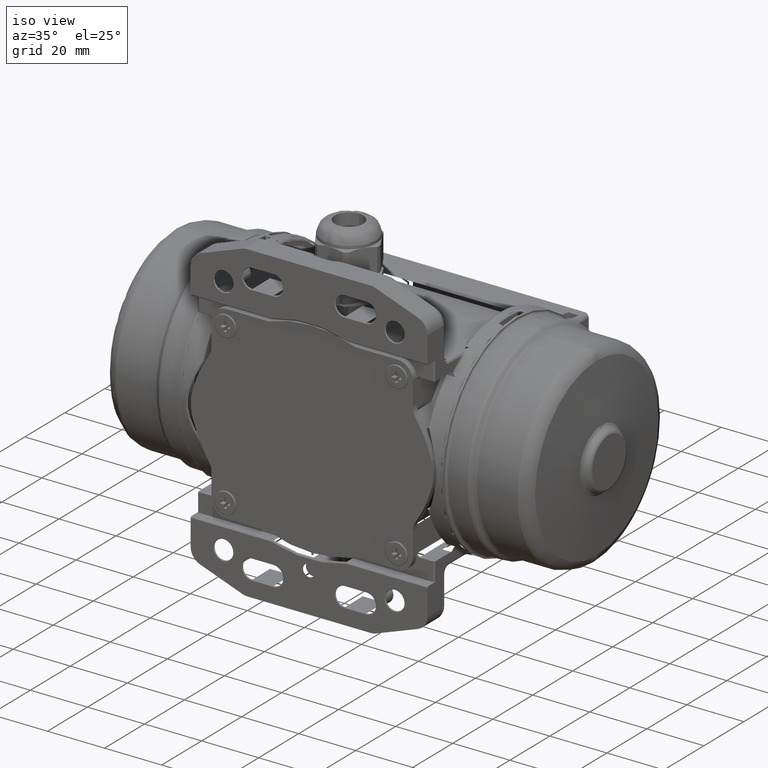
[diagram: clean part render]
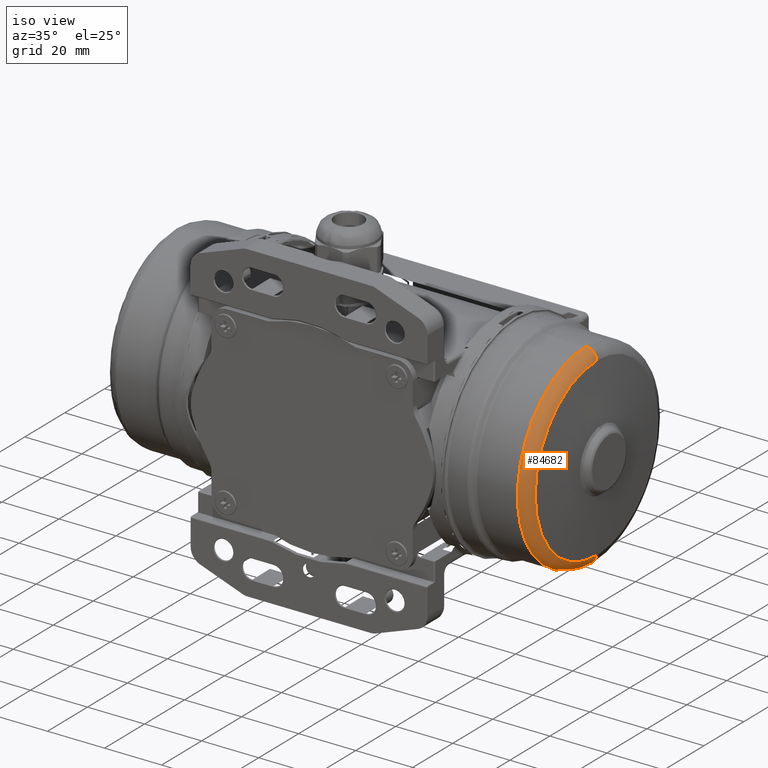
[diagram: same view with one face highlighted and labeled with its STEP entity id]
A machine part, iso view. The second image highlights one B-rep face of the part: STEP entity #84682.
In plain terms, the highlighted face is a freeform B-spline surface patch.
Its self-contained STEP definition (entity closure, byte-faithful):
#75 = CARTESIAN_POINT ( 'NONE',  ( 71.84616858138170400, -23.96142504933795100, -24.27496744435845200 ) ) ;
#491 = CARTESIAN_POINT ( 'NONE',  ( 71.84616858138170400, 32.05872122068554800, -13.16247379832032000 ) ) ;
#900 = CARTESIAN_POINT ( 'NONE',  ( 73.06222453156009100, -6.166481506836210400, 32.77824148063749700 ) ) ;
#977 = EDGE_CURVE ( 'NONE', #42993, #122891, #7827, .T. ) ;
#1321 = CARTESIAN_POINT ( 'NONE',  ( 73.06222453156009100, -2.922361509998724600, 33.25772776959745900 ) ) ;
#1778 = CARTESIAN_POINT ( 'NONE',  ( 70.43574938282006300, -30.49102585178326300, 15.20282566184694100 ) ) ;
#2433 = CARTESIAN_POINT ( 'NONE',  ( 70.43574938282006300, -8.573300669312010000, -33.20164898374916600 ) ) ;
#2957 = CARTESIAN_POINT ( 'NONE',  ( 74.22128918868342900, -30.29536546909900000, 4.040129364809244400 ) ) ;
#3016 = CARTESIAN_POINT ( 'NONE',  ( 70.43574938282010600, 0.3360905650000265400, 34.29700716684155300 ) ) ;
#3183 = CARTESIAN_POINT ( 'NONE',  ( 71.84616858138170400, 0.3181463391479345000, -34.12684089303675700 ) ) ;
#3657 = CARTESIAN_POINT ( 'NONE',  ( 70.43574938282007700, -4.170881941359296800, -34.07960095651142800 ) ) ;
#3703 = CARTESIAN_POINT ( 'NONE',  ( 73.92288612965070600, -17.69444738944589800, -26.95690571574654700 ) ) ;
#3880 = B_SPLINE_SURFACE_WITH_KNOTS ( 'NONE', 3, 3, ( 
 ( #82626, #25109, #92787, #63150, #15010, #44517, #24691, #92366, #34404, #102928, #63569, #111842, #44926, #121578, #112677, #5649, #112257, #15838, #54678, #28000, #17043, #27574, #104167, #94826, #105024, #36876, #124491, #36447, #105429, #113883, #66903, #114307, #103743, #84679, #17449, #85090, #76636, #7298, #7707, #47449, #75794, #115154, #66477 ),
 ( #96087, #55910, #85956, #18296, #18728, #86375, #8565, #123643, #37725, #17891, #95665, #28433, #123230, #37292, #57178, #124073, #46586, #65202, #124909, #45761, #94407, #74954, #85524, #104582, #95243, #26744, #8984, #46166, #65626, #47007, #56319, #113471, #55489, #66045, #8146, #75380, #27160, #114743, #56750, #76228, #20411, #68152, #77482 ),
 ( #19570, #29275, #11082, #106681, #49552, #115993, #87199, #96933, #39386, #58441, #9832, #58035, #107105, #30103, #96511, #28852, #38979, #75, #29685, #86791, #48713, #88042, #67743, #116423, #10647, #19147, #97361, #491, #68990, #49139, #115586, #10231, #116833, #87627, #38152, #59258, #78734, #38565, #117260, #77904, #58859, #105851, #19982 ),
 ( #47866, #97771, #1321, #900, #68577, #57604, #78316, #125341, #67328, #39802, #9403, #77061, #107536, #106263, #48304, #100530, #33701, #70370, #79291, #50371, #109589, #75627, #67898, #99168, #18501, #106451, #44084, #74128, #91286, #23603, #62912, #52347, #14341, #63341, #33335, #120488, #43858, #110334, #4982, #91697, #44281, #72652, #13489 ),
 ( #53611, #72235, #24874, #54031, #81108, #82389, #61642, #71805, #101426, #111598, #23190, #4113, #120070, #24447, #52756, #34179, #14770, #92125, #3703, #101844, #101005, #121326, #62064, #90853, #13903, #73073, #62489, #4543, #5408, #15185, #82812, #71374, #120921, #32913, #100580, #42603, #81528, #43022, #92545, #110738, #81946, #24035, #33760 ),
 ( #43440, #34598, #111169, #53173, #102271, #112017, #45941, #75138, #94184, #84046, #26114, #74307, #84851, #7064, #6650, #46351, #93366, #36220, #112846, #44695, #34998, #64160, #113638, #64976, #123409, #122576, #7476, #26922, #112436, #5841, #73897, #94587, #17223, #16406, #36628, #25709, #93768, #35816, #104348, #74731, #103517, #114071, #35420 ),
 ( #54446, #102700, #6229, #55673, #16801, #65390, #64566, #121761, #63740, #122170, #73481, #16004, #15595, #83230, #45522, #25293, #103099, #92965, #83645, #103929, #45117, #84449, #54859, #113252, #55258, #122992, #26520, #46770, #56080, #125521, #57365, #9165, #114493, #65805, #124255, #56515, #37487, #57790, #29021, #95016, #37902, #86546, #37058 ) ),
 .UNSPECIFIED., .F., .T., .F.,
 ( 4, 1, 1, 1, 4 ),
 ( 4, 1, 1, 1, 1, 1, 1, 1, 1, 1, 1, 1, 1, 1, 1, 1, 1, 1, 1, 1, 1, 1, 1, 1, 1, 1, 1, 1, 1, 1, 1, 1, 1, 1, 1, 1, 1, 1, 1, 1, 4 ),
 ( 0.0000000000000000000, 1.401289650940726000, 2.802579301881445300, 4.203868952822170400, 5.605158603762900400 ),
 ( 0.0000000000000000000, 3.231698556428625100, 6.463397112857250300, 9.695095669285880300, 12.92679422571450100, 19.38240589368595200, 25.83801756165739900, 29.06971611808605300, 32.30141467451465300, 35.53311323094325000, 38.76481178737190400, 45.22042345534340100, 51.67603512331479700, 58.13164679128630000, 64.58725845925769700, 71.04287012722920700, 77.49848179520060400, 83.95409346317210000, 90.40970513114349700, 96.86531679911499300, 103.3209284670864000, 109.7765401350580000, 116.2321518030292000, 122.6877634710007900, 129.1433751389721700, 135.5989868069436000, 142.0545984749150000, 148.5102101428865900, 154.9658218108579900, 161.4214334788295000, 167.8770451468010100, 171.1087437032294900, 174.3404422596580000, 177.5721408160870000, 180.8038393725154800, 187.2594510404870200, 193.7150627084585000, 196.9467612648869900, 200.1784598213155000, 203.4101583777440100, 206.6418569341730100 ),
 .UNSPECIFIED. ) ;
#4113 = CARTESIAN_POINT ( 'NONE',  ( 73.92288612965060700, -29.92410021405890000, 11.41215137080319900 ) ) ;
#4543 = CARTESIAN_POINT ( 'NONE',  ( 73.92288612965070600, 30.28966746623805100, -12.42861822794644100 ) ) ;
#4982 = CARTESIAN_POINT ( 'NONE',  ( 73.06222453156019000, 10.05437410676571900, 31.97268144991780000 ) ) ;
#5408 = CARTESIAN_POINT ( 'NONE',  ( 73.92288612965070600, 32.13827405574305400, -6.346271111378470700 ) ) ;
#5649 = CARTESIAN_POINT ( 'NONE',  ( 70.43574938282010600, -31.56418599270870100, -13.19686040768102100 ) ) ;
#5841 = CARTESIAN_POINT ( 'NONE',  ( 74.18057904128930600, 31.83424199148150200, -0.01937788834485120300 ) ) ;
#6124 = CARTESIAN_POINT ( 'NONE',  ( 70.43574938282006300, -33.74170139248900600, 4.495019829275311600 ) ) ;
#6229 = CARTESIAN_POINT ( 'NONE',  ( 74.22128918806660600, -2.674790984704664700, 30.73064623487700000 ) ) ;
#6609 = CARTESIAN_POINT ( 'NONE',  ( 71.84616858138170400, 0.3540347908520845600, 34.12085523303675000 ) ) ;
#6650 = CARTESIAN_POINT ( 'NONE',  ( 74.18057904128930600, -30.56018723386494800, -6.131799084268929600 ) ) ;
#7064 = CARTESIAN_POINT ( 'NONE',  ( 74.18057904128930600, -31.16206067382514900, 0.01374908727597824000 ) ) ;
#7298 = CARTESIAN_POINT ( 'NONE',  ( 70.43574938282010600, 14.55443122782166100, 31.35243117962375300 ) ) ;
#7476 = CARTESIAN_POINT ( 'NONE',  ( 74.18057904128930600, 26.51672796140579900, -17.51625843180164900 ) ) ;
#7707 = CARTESIAN_POINT ( 'NONE',  ( 70.43574938282010600, 10.32632557389709900, 32.86747233511550100 ) ) ;
#7827 = B_SPLINE_CURVE_WITH_KNOTS ( 'NONE', 3,
 ( #89278, #108352, #31751, #107929, #60079, #70232, #60887, #79962, #40198, #69401, #99409, #20792, #41441, #11478, #51194, #2957, #70626, #79133, #22444, #21208, #90105, #59230, #11054, #32163, #88440, #88850, #99817, #30919, #100650, #72306, #14409, #71446, #62555, #82013 ),
 .UNSPECIFIED., .F., .F.,
 ( 4, 2, 2, 2, 2, 2, 2, 2, 2, 2, 2, 2, 2, 2, 2, 2, 4 ),
 ( 0.0000000000000000000, 0.06250000000000001400, 0.1250000000000000300, 0.1875000000000000600, 0.2500000000000000600, 0.3125000000000000600, 0.3750000000000000000, 0.4375000000000000000, 0.4999999999999999400, 0.5624999999999998900, 0.6249999999999998900, 0.6874999999999998900, 0.7499999999999998900, 0.8125000000000000000, 0.8750000000000000000, 0.9375000000000000000, 1.000000000000000000 ),
 .UNSPECIFIED. ) ;
#8146 = CARTESIAN_POINT ( 'NONE',  ( 70.90284593313370500, 26.90427327882214900, 21.77780491656984900 ) ) ;
#8565 = CARTESIAN_POINT ( 'NONE',  ( 70.90284593313370500, -18.82800489602329800, 28.71076998319835000 ) ) ;
#8589 = VERTEX_POINT ( 'NONE', #90513 ) ;
#8984 = CARTESIAN_POINT ( 'NONE',  ( 70.90284593313370500, 29.02925267098275000, -19.19698575343484800 ) ) ;
#9165 = CARTESIAN_POINT ( 'NONE',  ( 74.22128918806660600, 29.30261889644240000, 10.88935325234363900 ) ) ;
#9403 = CARTESIAN_POINT ( 'NONE',  ( 73.06222453156009100, -29.12939771066750100, 15.76635564445615100 ) ) ;
#9832 = CARTESIAN_POINT ( 'NONE',  ( 71.84616858138170400, -29.79839074077254700, 16.12438752636534600 ) ) ;
#10231 = CARTESIAN_POINT ( 'NONE',  ( 71.84616858138170400, 32.39614042158530800, 12.05261681915707900 ) ) ;
#10647 = CARTESIAN_POINT ( 'NONE',  ( 71.84616858138170400, 19.40147687112200000, -28.56886684724454600 ) ) ;
#11054 = CARTESIAN_POINT ( 'NONE',  ( 74.22128918868344300, -26.42558862853541200, -15.44467222679467800 ) ) ;
#11082 = CARTESIAN_POINT ( 'NONE',  ( 71.84616858138170400, -2.996342355206894800, 34.01288886006480500 ) ) ;
#11478 = CARTESIAN_POINT ( 'NONE',  ( 74.22128918868341400, -28.91834333564500900, 9.937381056524140300 ) ) ;
#12093 = CARTESIAN_POINT ( 'NONE',  ( 70.43574938282007700, -32.21556172661424000, -11.04463925011096700 ) ) ;
#12112 = AXIS2_PLACEMENT_3D ( 'NONE', #64586, #112037, #103538 ) ;
#12206 = CARTESIAN_POINT ( 'NONE',  ( 70.43574938282006300, -16.86640636320318300, -29.76206072561903300 ) ) ;
#12800 = CARTESIAN_POINT ( 'NONE',  ( 70.43574938282006300, -14.86162209201006900, 30.82812055527784500 ) ) ;
#13489 = CARTESIAN_POINT ( 'NONE',  ( 73.06222453156009100, 0.3536364245452659500, 33.36329726205675400 ) ) ;
#13903 = CARTESIAN_POINT ( 'NONE',  ( 73.92288612965070600, 18.33827080883435200, -26.97585373216659800 ) ) ;
#14341 = CARTESIAN_POINT ( 'NONE',  ( 73.06222453156009100, 29.81814734919390000, 15.73535773179324900 ) ) ;
#14409 = CARTESIAN_POINT ( 'NONE',  ( 74.22128918868344300, -7.672281169438079500, -29.84422132371574300 ) ) ;
#14770 = CARTESIAN_POINT ( 'NONE',  ( 73.92288612965060700, -26.63677203919919700, -18.00517646669470300 ) ) ;
#15010 = CARTESIAN_POINT ( 'NONE',  ( 70.43574938282010600, -9.619568674178021100, 32.87796100071234700 ) ) ;
#15185 = CARTESIAN_POINT ( 'NONE',  ( 73.92288612965070600, 32.76457846829475100, -0.01986184110913090000 ) ) ;
#15595 = CARTESIAN_POINT ( 'NONE',  ( 74.22128918806660600, -30.09478915111484900, 6.065994405119609700 ) ) ;
#15838 = CARTESIAN_POINT ( 'NONE',  ( 70.43574938282010600, -24.08684874723625000, -24.40025929969650100 ) ) ;
#15895 = CARTESIAN_POINT ( 'NONE',  ( 70.43574938282006300, -32.86490696882139400, 8.897669243131852900 ) ) ;
#16004 = CARTESIAN_POINT ( 'NONE',  ( 74.22128918806660600, -28.61896614143380200, 10.91981165790532100 ) ) ;
#16406 = CARTESIAN_POINT ( 'NONE',  ( 74.18057904128940500, 26.40920854585720100, 17.39868693959584800 ) ) ;
#16501 = EDGE_CURVE ( 'NONE', #23816, #96448, #113125, .T. ) ;
#16801 = CARTESIAN_POINT ( 'NONE',  ( 74.22128918806660600, -8.612738594046430100, 29.55266303853415300 ) ) ;
#17043 = CARTESIAN_POINT ( 'NONE',  ( 70.43574938282010600, -6.416446212573680100, -33.85723777617884900 ) ) ;
#17223 = CARTESIAN_POINT ( 'NONE',  ( 74.18057904128930600, 27.98931133157989800, 14.75907366260732100 ) ) ;
#17449 = CARTESIAN_POINT ( 'NONE',  ( 70.43574938282010600, 26.90427327882214900, 21.77780491656984900 ) ) ;
#17891 = CARTESIAN_POINT ( 'NONE',  ( 70.90284593313370500, -28.21915988760715200, 19.09874794939615200 ) ) ;
#18296 = CARTESIAN_POINT ( 'NONE',  ( 70.90284593313370500, -6.348446151874960600, 33.69557474497809600 ) ) ;
#18501 = CARTESIAN_POINT ( 'NONE',  ( 73.06222453156009100, 18.97822052150589700, -27.93469729169510200 ) ) ;
#18728 = CARTESIAN_POINT ( 'NONE',  ( 70.90284593313370500, -9.619568674178021100, 32.87796100071234700 ) ) ;
#18957 = FACE_OUTER_BOUND ( 'NONE', #22642, .T. ) ;
#19147 = CARTESIAN_POINT ( 'NONE',  ( 71.84616858138170400, 24.60806562797540000, -24.30050799619255000 ) ) ;
#19314 = CARTESIAN_POINT ( 'NONE',  ( 74.18057904128930600, 0.3196331132321079700, -31.29949947576660200 ) ) ;
#19570 = CARTESIAN_POINT ( 'NONE',  ( 71.84616858138170400, 0.3540347908520845600, 34.12085523303675000 ) ) ;
#19982 = CARTESIAN_POINT ( 'NONE',  ( 71.84616858138170400, 0.3540347908520845600, 34.12085523303675000 ) ) ;
#20411 = CARTESIAN_POINT ( 'NONE',  ( 70.90284593313370500, 3.721683202961954900, 34.18493697360725000 ) ) ;
#20792 = CARTESIAN_POINT ( 'NONE',  ( 74.22128918868342900, -26.41746483175810700, 15.45275721597623400 ) ) ;
#20855 = CARTESIAN_POINT ( 'NONE',  ( 70.43574938282006300, -22.32713534483728100, 25.84088872716132100 ) ) ;
#21208 = CARTESIAN_POINT ( 'NONE',  ( 74.22128918868344300, -29.51144551811752200, -7.987823799913943600 ) ) ;
#21271 = CARTESIAN_POINT ( 'NONE',  ( 70.43574938282006300, -8.555841731639404200, 33.20034378867257600 ) ) ;
#21810 = ORIENTED_EDGE ( 'NONE', *, *, #977, .F. ) ;
#22444 = CARTESIAN_POINT ( 'NONE',  ( 74.22128918868345700, -30.29748733317763200, -4.030006737026213600 ) ) ;
#22642 = EDGE_LOOP ( 'NONE', ( #54140, #21810, #44932, #113217, #37549, #67258 ) ) ;
#22720 = CARTESIAN_POINT ( 'NONE',  ( 70.43574938282003500, -1.926499961122964300, -34.30180777588409300 ) ) ;
#23190 = CARTESIAN_POINT ( 'NONE',  ( 73.92288612965070600, -28.11790220024380100, 15.22502318680300000 ) ) ;
#23603 = CARTESIAN_POINT ( 'NONE',  ( 73.06222453156009100, 33.91736114433720000, -0.02046150840868379800 ) ) ;
#23816 = VERTEX_POINT ( 'NONE', #102830 ) ;
#24035 = CARTESIAN_POINT ( 'NONE',  ( 73.92288612965070600, 1.407036777381545800, 32.21734021354365000 ) ) ;
#24447 = CARTESIAN_POINT ( 'NONE',  ( 73.92288612965070600, -32.09239714509570300, 0.01424358030584192000 ) ) ;
#24691 = CARTESIAN_POINT ( 'NONE',  ( 70.43574938282010600, -18.82800489602329800, 28.71076998319835000 ) ) ;
#24874 = CARTESIAN_POINT ( 'NONE',  ( 73.92288612965070600, -2.810504899514044900, 32.11594897926499900 ) ) ;
#25109 = CARTESIAN_POINT ( 'NONE',  ( 70.43574938282010600, -0.7678865789330759900, 34.29759244525914900 ) ) ;
#25293 = CARTESIAN_POINT ( 'NONE',  ( 74.22128918806660600, -28.33806532794909900, -11.86254567961098200 ) ) ;
#25709 = CARTESIAN_POINT ( 'NONE',  ( 74.18057904128930600, 21.82751197470985000, 22.90869326854010200 ) ) ;
#26114 = CARTESIAN_POINT ( 'NONE',  ( 74.18057904128930600, -27.30158947362430100, 14.78814870742001900 ) ) ;
#26520 = CARTESIAN_POINT ( 'NONE',  ( 74.22128918806660600, 26.12747208485049900, -17.25586975409475000 ) ) ;
#26744 = CARTESIAN_POINT ( 'NONE',  ( 70.90284593313370500, 24.73335748562924900, -24.42593169177750000 ) ) ;
#26922 = CARTESIAN_POINT ( 'NONE',  ( 74.18057904128930600, 29.43033337439404900, -12.07214115169795900 ) ) ;
#27160 = CARTESIAN_POINT ( 'NONE',  ( 70.90284593313370500, 19.53037402051525400, 28.69059900443515000 ) ) ;
#27574 = CARTESIAN_POINT ( 'NONE',  ( 70.43574938282010600, 0.3179374420612189900, -34.52409249402384700 ) ) ;
#28000 = CARTESIAN_POINT ( 'NONE',  ( 70.43574938282010600, -12.89133360631240100, -31.88938328685310400 ) ) ;
#28433 = CARTESIAN_POINT ( 'NONE',  ( 70.90284593313370500, -31.87669087232584900, 12.14873310923306000 ) ) ;
#28852 = CARTESIAN_POINT ( 'NONE',  ( 71.84616858138170400, -31.40036252335905300, -13.12910346655215900 ) ) ;
#29021 = CARTESIAN_POINT ( 'NONE',  ( 74.22128918806660600, 9.315998796644759500, 29.54323510671394700 ) ) ;
#29275 = CARTESIAN_POINT ( 'NONE',  ( 71.84616858138170400, -0.7622171181848330600, 34.12144222065684600 ) ) ;
#29685 = CARTESIAN_POINT ( 'NONE',  ( 71.84616858138170400, -18.75932825386454900, -28.54879976381964800 ) ) ;
#30103 = CARTESIAN_POINT ( 'NONE',  ( 71.84616858138170400, -34.00761876032219500, 0.01526156011055744700 ) ) ;
#30919 = CARTESIAN_POINT ( 'NONE',  ( 74.22128918868344300, -15.12669320310088500, -26.75248355397556600 ) ) ;
#31096 = B_SPLINE_CURVE_WITH_KNOTS ( 'NONE', 3,
 ( #93325, #103055, #6609, #84011, #45901, #74692, #93728 ),
 .UNSPECIFIED., .F., .F.,
 ( 4, 1, 1, 1, 4 ),
 ( 0.0000000000000000000, 1.401289650940726000, 2.802579301881445300, 4.203868952822170400, 5.605158603762900400 ),
 .UNSPECIFIED. ) ;
#31398 = CARTESIAN_POINT ( 'NONE',  ( 70.43574938282006300, -20.58355775233979700, 27.27147026021911500 ) ) ;
#31751 = CARTESIAN_POINT ( 'NONE',  ( 74.22128918868342900, -3.698977625391938000, 30.62952519496794300 ) ) ;
#32163 = CARTESIAN_POINT ( 'NONE',  ( 74.22128918868342900, -24.18501024993802400, -18.80056050974901500 ) ) ;
#32913 = CARTESIAN_POINT ( 'NONE',  ( 73.92288612965070600, 27.17931001604860000, 17.91266686268009800 ) ) ;
#33335 = CARTESIAN_POINT ( 'NONE',  ( 73.06222453156009100, 26.18104141674849900, 21.18489394929065400 ) ) ;
#33701 = CARTESIAN_POINT ( 'NONE',  ( 73.06222453156009100, -27.59561565923230100, -18.64512629997720000 ) ) ;
#33760 = CARTESIAN_POINT ( 'NONE',  ( 73.92288612965070600, 0.3530341077606165000, 32.21789446703570500 ) ) ;
#34179 = CARTESIAN_POINT ( 'NONE',  ( 73.92288612965070600, -29.63053794297714900, -12.39710883612813900 ) ) ;
#34404 = CARTESIAN_POINT ( 'NONE',  ( 70.43574938282010600, -26.20917034091000300, 21.80573493273729800 ) ) ;
#34598 = CARTESIAN_POINT ( 'NONE',  ( 74.18057904128930600, -0.6712165136856509400, 31.29405216835564500 ) ) ;
#34998 = CARTESIAN_POINT ( 'NONE',  ( 74.18057904128930600, -5.825158454071670100, -30.89278141416604800 ) ) ;
#35345 = EDGE_CURVE ( 'NONE', #96448, #37044, #91608, .T. ) ;
#35420 = CARTESIAN_POINT ( 'NONE',  ( 74.18057904128930600, 0.3525480167679124800, 31.29351381576660200 ) ) ;
#35816 = CARTESIAN_POINT ( 'NONE',  ( 74.18057904128930600, 13.30939827841823900, 28.60678476698884900 ) ) ;
#36220 = CARTESIAN_POINT ( 'NONE',  ( 74.18057904128930600, -21.94824728268390100, -22.26390588473200100 ) ) ;
#36447 = CARTESIAN_POINT ( 'NONE',  ( 70.43574938282010600, 32.22247333868189400, -13.23040299699506200 ) ) ;
#36628 = CARTESIAN_POINT ( 'NONE',  ( 74.18057904128930600, 24.57782297995060400, 19.87056331209209900 ) ) ;
#36876 = CARTESIAN_POINT ( 'NONE',  ( 70.43574938282010600, 24.73335748562924900, -24.42593169177750000 ) ) ;
#37044 = VERTEX_POINT ( 'NONE', #57285 ) ;
#37058 = CARTESIAN_POINT ( 'NONE',  ( 74.22128918806660600, 0.3523033260173864500, 30.82819477318324900 ) ) ;
#37292 = CARTESIAN_POINT ( 'NONE',  ( 70.90284593313370500, -34.18490087802909700, 0.01535578921394560100 ) ) ;
#37487 = CARTESIAN_POINT ( 'NONE',  ( 74.22128918806660600, 17.58922863924964700, 25.78877495924890100 ) ) ;
#37549 = ORIENTED_EDGE ( 'NONE', *, *, #35345, .F. ) ;
#37725 = CARTESIAN_POINT ( 'NONE',  ( 70.90284593313370500, -26.20917034091000300, 21.80573493273729800 ) ) ;
#37902 = CARTESIAN_POINT ( 'NONE',  ( 74.22128918806660600, 3.379293369694270400, 30.72746265907445100 ) ) ;
#38152 = CARTESIAN_POINT ( 'NONE',  ( 71.84616858138170400, 26.76783271039575100, 21.66594990347649800 ) ) ;
#38565 = CARTESIAN_POINT ( 'NONE',  ( 71.84616858138170400, 14.48141311803930100, 31.19140579368724900 ) ) ;
#38979 = CARTESIAN_POINT ( 'NONE',  ( 71.84616858138170400, -28.22978525479894800, -19.06838272936414600 ) ) ;
#39386 = CARTESIAN_POINT ( 'NONE',  ( 71.84616858138170400, -26.07284748714004900, 21.69373648539690100 ) ) ;
#39802 = CARTESIAN_POINT ( 'NONE',  ( 73.06222453156019000, -27.44183660662584900, 18.57876554406799800 ) ) ;
#40198 = CARTESIAN_POINT ( 'NONE',  ( 74.22128918868341400, -20.03517083931965100, 23.22725995915353500 ) ) ;
#40266 = CARTESIAN_POINT ( 'NONE',  ( 70.43574938282006300, -32.20975091215714800, 11.05576953857723200 ) ) ;
#40916 = CARTESIAN_POINT ( 'NONE',  ( 70.43574938282010600, 0.3180537111114569700, -34.30298808761084900 ) ) ;
#41441 = CARTESIAN_POINT ( 'NONE',  ( 74.22128918868342900, -27.37343540301770900, 13.66503945262396700 ) ) ;
#42603 = CARTESIAN_POINT ( 'NONE',  ( 73.92288612965070600, 22.46228742566560000, 23.58541797641759900 ) ) ;
#42993 = VERTEX_POINT ( 'NONE', #103289 ) ;
#43022 = CARTESIAN_POINT ( 'NONE',  ( 73.92288612965060700, 13.69258080958635800, 29.45180958548074900 ) ) ;
#43440 = CARTESIAN_POINT ( 'NONE',  ( 74.18057904128930600, 0.3525480167679124800, 31.29351381576660200 ) ) ;
#43858 = CARTESIAN_POINT ( 'NONE',  ( 73.06222453156009100, 19.00787244356395100, 27.90950983188865200 ) ) ;
#44084 = CARTESIAN_POINT ( 'NONE',  ( 73.06222453156009100, 28.24817519638770200, -18.67449208526905100 ) ) ;
#44281 = CARTESIAN_POINT ( 'NONE',  ( 73.06222453156009100, 3.629521518658934900, 33.25428242343945600 ) ) ;
#44517 = CARTESIAN_POINT ( 'NONE',  ( 70.43574938282010600, -13.84926537588734000, 31.36736743024674800 ) ) ;
#44695 = CARTESIAN_POINT ( 'NONE',  ( 74.18057904128930600, -11.73307053472334100, -29.09724264978620000 ) ) ;
#44926 = CARTESIAN_POINT ( 'NONE',  ( 70.43574938282010600, -33.51855828543535400, 6.748814335599130100 ) ) ;
#44932 = ORIENTED_EDGE ( 'NONE', *, *, #92944, .F. ) ;
#45117 = CARTESIAN_POINT ( 'NONE',  ( 74.22128918806660600, -5.733552495390029900, -30.43350948927440000 ) ) ;
#45522 = CARTESIAN_POINT ( 'NONE',  ( 74.22128918806660600, -30.10081882679385100, -6.040675487290700500 ) ) ;
#45761 = CARTESIAN_POINT ( 'NONE',  ( 70.90284593313370500, -12.89133360631240100, -31.88938328685310400 ) ) ;
#45901 = CARTESIAN_POINT ( 'NONE',  ( 73.92288612965070600, 0.3530341077606165000, 32.21789446703570500 ) ) ;
#45941 = CARTESIAN_POINT ( 'NONE',  ( 74.18057904128930600, -17.14989555399045100, 26.19644136697200300 ) ) ;
#46166 = CARTESIAN_POINT ( 'NONE',  ( 70.90284593313370500, 32.22247333868189400, -13.23040299699506200 ) ) ;
#46351 = CARTESIAN_POINT ( 'NONE',  ( 74.18057904128930600, -28.77082941536340100, -12.04153572853396000 ) ) ;
#46586 = CARTESIAN_POINT ( 'NONE',  ( 70.90284593313370500, -28.37724221442769900, -19.16679821105400100 ) ) ;
#46770 = CARTESIAN_POINT ( 'NONE',  ( 74.22128918806660600, 28.99775777220345300, -11.89269605881862000 ) ) ;
#47007 = CARTESIAN_POINT ( 'NONE',  ( 70.90284593313370500, 34.85708221369460300, -0.02095034295454665000 ) ) ;
#47449 = CARTESIAN_POINT ( 'NONE',  ( 70.43574938282010600, 7.056064754421700300, 33.68852590421740000 ) ) ;
#47866 = CARTESIAN_POINT ( 'NONE',  ( 73.06222453156009100, 0.3536364245452659500, 33.36329726205675400 ) ) ;
#48304 = CARTESIAN_POINT ( 'NONE',  ( 73.06222453156009100, -32.60350168630154900, -6.537125527701939600 ) ) ;
#48713 = CARTESIAN_POINT ( 'NONE',  ( 71.84616858138170400, -6.381768644816170300, -33.68337972672710400 ) ) ;
#49139 = CARTESIAN_POINT ( 'NONE',  ( 71.84616858138170400, 34.67980009493149400, -0.02085812237243835100 ) ) ;
#49552 = CARTESIAN_POINT ( 'NONE',  ( 71.84616858138170400, -9.568441511274759400, 32.70910127555205100 ) ) ;
#50371 = CARTESIAN_POINT ( 'NONE',  ( 73.06222453156009100, -12.53126025402850100, -31.02138061639119800 ) ) ;
#50612 = CARTESIAN_POINT ( 'NONE',  ( 74.22128918818950200, 0.3198778039833749500, -30.83418043177885100 ) ) ;
#51194 = CARTESIAN_POINT ( 'NONE',  ( 74.22128918868342900, -29.50724252166680000, 7.997532535834283300 ) ) ;
#52067 = CARTESIAN_POINT ( 'NONE',  ( 70.43574938282010600, 0.3360905650000265400, 34.29700716684155300 ) ) ;
#52347 = CARTESIAN_POINT ( 'NONE',  ( 73.06222453156009100, 31.68439928752539500, 11.78497926644402000 ) ) ;
#52756 = CARTESIAN_POINT ( 'NONE',  ( 73.92288612965060700, -31.47274663599775100, -6.312820882674319700 ) ) ;
#53173 = CARTESIAN_POINT ( 'NONE',  ( 74.18057904128930600, -5.763112837575630600, 30.74475031521514600 ) ) ;
#53611 = CARTESIAN_POINT ( 'NONE',  ( 73.92288612965070600, 0.3530341077606165000, 32.21789446703570500 ) ) ;
#54031 = CARTESIAN_POINT ( 'NONE',  ( 73.92288612965060700, -5.943260279502929700, 31.65292256444844600 ) ) ;
#54140 = ORIENTED_EDGE ( 'NONE', *, *, #67052, .F. ) ;
#54446 = CARTESIAN_POINT ( 'NONE',  ( 74.22128918806660600, 0.3523033260173864500, 30.82819477318324900 ) ) ;
#54678 = CARTESIAN_POINT ( 'NONE',  ( 70.43574938282010600, -18.85789874474080100, -28.69615312792315000 ) ) ;
#54859 = CARTESIAN_POINT ( 'NONE',  ( 74.22128918806660600, 6.373726145733859200, -30.43987617283219600 ) ) ;
#55258 = CARTESIAN_POINT ( 'NONE',  ( 74.22128918806660600, 17.56182960959295200, -25.81250350557265000 ) ) ;
#55489 = CARTESIAN_POINT ( 'NONE',  ( 70.90284593313370500, 30.64315812008310000, 16.17577166982185200 ) ) ;
#55673 = CARTESIAN_POINT ( 'NONE',  ( 74.22128918806660600, -5.672429378238439800, 30.28759033362775100 ) ) ;
#55827 = B_SPLINE_CURVE_WITH_KNOTS ( 'NONE', 3,
 ( #50612, #19314, #99640, #98409, #3183, #70857, #60313 ),
 .UNSPECIFIED., .F., .F.,
 ( 4, 1, 1, 1, 4 ),
 ( 0.0000000000000000000, 1.401289650940730000, 2.802579301881455100, 4.203868952822174900, 5.605158603762900400 ),
 .UNSPECIFIED. ) ;
#55910 = CARTESIAN_POINT ( 'NONE',  ( 70.90284593313370500, -0.7678865789330741000, 34.29759244525914900 ) ) ;
#56080 = CARTESIAN_POINT ( 'NONE',  ( 74.22128918806660600, 30.76663322371074800, -6.072682994316809700 ) ) ;
#56319 = CARTESIAN_POINT ( 'NONE',  ( 70.90284593313370500, 34.19782164508274700, 6.713205279635899600 ) ) ;
#56515 = CARTESIAN_POINT ( 'NONE',  ( 74.22128918806660600, 21.50797574827694800, 22.56804042955034700 ) ) ;
#56750 = CARTESIAN_POINT ( 'NONE',  ( 70.90284593313370500, 10.32632557389709900, 32.86747233511550100 ) ) ;
#57178 = CARTESIAN_POINT ( 'NONE',  ( 70.90284593313370500, -33.52526635811345600, -6.719973349123689500 ) ) ;
#57285 = CARTESIAN_POINT ( 'NONE',  ( 70.43574938282010600, 0.3541274188885459900, 34.29700242761084900 ) ) ;
#57365 = CARTESIAN_POINT ( 'NONE',  ( 74.22128918806660600, 30.77333627473290200, 6.033986543995170300 ) ) ;
#57604 = CARTESIAN_POINT ( 'NONE',  ( 73.06222453156000500, -13.46311546485228000, 30.51341199380139800 ) ) ;
#57790 = CARTESIAN_POINT ( 'NONE',  ( 74.22128918806660600, 13.11651006911505800, 28.18141223354179900 ) ) ;
#58035 = CARTESIAN_POINT ( 'NONE',  ( 71.84616858138170400, -31.71126253809439900, 12.08632807339116000 ) ) ;
#58441 = CARTESIAN_POINT ( 'NONE',  ( 71.84616858138170400, -28.07251475778105000, 19.00065119968820000 ) ) ;
#58859 = CARTESIAN_POINT ( 'NONE',  ( 71.84616858138170400, 3.704296534518750000, 34.00936528976375700 ) ) ;
#59230 = CARTESIAN_POINT ( 'NONE',  ( 74.22128918868344300, -27.38061898586851200, -13.65645200794803300 ) ) ;
#59258 = CARTESIAN_POINT ( 'NONE',  ( 71.84616858138170400, 23.76905729014840000, 24.97854597699434700 ) ) ;
#59845 = AXIS2_PLACEMENT_3D ( 'NONE', #63533, #112636, #64351 ) ;
#60079 = CARTESIAN_POINT ( 'NONE',  ( 74.22128918868342900, -9.596591170814393800, 29.25405366116375600 ) ) ;
#60313 = CARTESIAN_POINT ( 'NONE',  ( 70.43574938282010600, 0.3180537111114569700, -34.30298808761084900 ) ) ;
#60887 = CARTESIAN_POINT ( 'NONE',  ( 74.22128918868342900, -15.11262469037856200, 26.75462539003842700 ) ) ;
#60952 = CARTESIAN_POINT ( 'NONE',  ( 70.43574938282006300, -29.42749931851623300, 17.19167901411358200 ) ) ;
#61642 = CARTESIAN_POINT ( 'NONE',  ( 73.92288612965070600, -17.66636556835040000, 26.97027374130039900 ) ) ;
#62064 = CARTESIAN_POINT ( 'NONE',  ( 73.92288612965060700, 6.645869419166249500, -31.81180280789274700 ) ) ;
#62489 = CARTESIAN_POINT ( 'NONE',  ( 73.92288612965060700, 27.29000514920990000, -18.03353417909445300 ) ) ;
#62555 = CARTESIAN_POINT ( 'NONE',  ( 74.22128918868344300, -1.697680939637449000, -30.83311948102146600 ) ) ;
#62912 = CARTESIAN_POINT ( 'NONE',  ( 73.06222453156009100, 33.27604678807134800, 6.530378756752901000 ) ) ;
#63150 = CARTESIAN_POINT ( 'NONE',  ( 70.43574938282010600, -6.348446151874960600, 33.69557474497809600 ) ) ;
#63341 = CARTESIAN_POINT ( 'NONE',  ( 73.06222453156009100, 28.13354502215365100, 18.54954090334405200 ) ) ;
#63533 = CARTESIAN_POINT ( 'NONE',  ( 70.43574938282010600, 0.3360905650000000100, -0.002992830000007200100 ) ) ;
#63569 = CARTESIAN_POINT ( 'NONE',  ( 70.43574938282010600, -29.95394483690354900, 16.20763701218990200 ) ) ;
#63740 = CARTESIAN_POINT ( 'NONE',  ( 74.22128918806660600, -23.52461007996460300, 19.60018705354554700 ) ) ;
#63986 = EDGE_CURVE ( 'NONE', #37044, #8589, #31096, .T. ) ;
#64160 = CARTESIAN_POINT ( 'NONE',  ( 74.18057904128930600, 0.3195270253135350000, -31.50124281341845000 ) ) ;
#64351 = DIRECTION ( 'NONE',  ( 0.0000000000000000000, -1.422422675272390600E-017, -1.000000000000000000 ) ) ;
#64566 = CARTESIAN_POINT ( 'NONE',  ( 74.22128918806660600, -16.88991246988435100, 25.80690601803525300 ) ) ;
#64586 = CARTESIAN_POINT ( 'NONE',  ( 74.22128918806470200, 0.3360905649999965700, -0.002992830000007200100 ) ) ;
#64976 = CARTESIAN_POINT ( 'NONE',  ( 74.18057904128930600, 12.37464623417940000, -29.10991983419050300 ) ) ;
#65202 = CARTESIAN_POINT ( 'NONE',  ( 70.90284593313370500, -24.08684874723625000, -24.40025929969650100 ) ) ;
#65390 = CARTESIAN_POINT ( 'NONE',  ( 74.22128918806660600, -12.41468000935990000, 28.19483795974344900 ) ) ;
#65626 = CARTESIAN_POINT ( 'NONE',  ( 70.90284593313370500, 34.19036443580395000, -6.755582011149100700 ) ) ;
#65805 = CARTESIAN_POINT ( 'NONE',  ( 74.22128918806660600, 26.02155127684200100, 17.13995732924729900 ) ) ;
#66045 = CARTESIAN_POINT ( 'NONE',  ( 70.90284593313370500, 28.91141474468764700, 19.06870550130045000 ) ) ;
#66477 = CARTESIAN_POINT ( 'NONE',  ( 70.43574938282010600, 0.3541274188885459900, 34.29700242761084900 ) ) ;
#66903 = CARTESIAN_POINT ( 'NONE',  ( 70.43574938282010600, 34.19782164508274700, 6.713205279635899600 ) ) ;
#67052 = EDGE_CURVE ( 'NONE', #122891, #23816, #55827, .T. ) ;
#67258 = ORIENTED_EDGE ( 'NONE', *, *, #16501, .F. ) ;
#67328 = CARTESIAN_POINT ( 'NONE',  ( 73.06222453156000500, -25.48656245007280000, 21.21206366213519700 ) ) ;
#67743 = CARTESIAN_POINT ( 'NONE',  ( 71.84616858138170400, 7.018524010920040200, -33.69042634929599700 ) ) ;
#67898 = CARTESIAN_POINT ( 'NONE',  ( 73.06222453156009100, 6.870172315262810700, -32.94255689045719700 ) ) ;
#68152 = CARTESIAN_POINT ( 'NONE',  ( 70.90284593313370500, 1.476141416710171800, 34.29641240996254900 ) ) ;
#68577 = CARTESIAN_POINT ( 'NONE',  ( 73.06222453156009100, -9.348558419269780400, 31.98288459590525100 ) ) ;
#68990 = CARTESIAN_POINT ( 'NONE',  ( 71.84616858138170400, 34.01650623781014800, -6.720904174273689700 ) ) ;
#69401 = CARTESIAN_POINT ( 'NONE',  ( 74.22128918868344300, -22.88880524803584000, 20.37437575195211500 ) ) ;
#69464 = CARTESIAN_POINT ( 'NONE',  ( 70.43574938282006300, -10.71411421130048000, 32.54575517945080800 ) ) ;
#70232 = CARTESIAN_POINT ( 'NONE',  ( 74.22128918868344300, -13.32465563747699900, 27.71012588736216000 ) ) ;
#70370 = CARTESIAN_POINT ( 'NONE',  ( 73.06222453156009100, -23.42201411905099900, -23.73612353066604900 ) ) ;
#70626 = CARTESIAN_POINT ( 'NONE',  ( 74.22128918868344300, -30.49456975564914200, 2.022672503624894700 ) ) ;
#70686 = CARTESIAN_POINT ( 'NONE',  ( 70.43574938282006300, -16.85075500633778800, 29.76511698382407200 ) ) ;
#70857 = CARTESIAN_POINT ( 'NONE',  ( 70.90284593313370500, 0.3180537111114694600, -34.30298808761084900 ) ) ;
#71319 = CARTESIAN_POINT ( 'NONE',  ( 70.43574938282007700, -14.87783271048918200, -30.82611014717659600 ) ) ;
#71374 = CARTESIAN_POINT ( 'NONE',  ( 73.92288612965060700, 30.60827004657900100, 11.38032006850368200 ) ) ;
#71446 = CARTESIAN_POINT ( 'NONE',  ( 74.22128918868344300, -3.715085354720908800, -30.63338475564425100 ) ) ;
#71805 = CARTESIAN_POINT ( 'NONE',  ( 73.92288612965060700, -21.76528585703264800, 23.60867530549749900 ) ) ;
#72235 = CARTESIAN_POINT ( 'NONE',  ( 73.92288612965070600, -0.7009685618603099800, 32.21844872052780300 ) ) ;
#72306 = CARTESIAN_POINT ( 'NONE',  ( 74.22128918868344300, -9.611974785044788300, -29.25481211773554300 ) ) ;
#72652 = CARTESIAN_POINT ( 'NONE',  ( 73.06222453156009100, 1.445107261712731800, 33.36272330570880500 ) ) ;
#73073 = CARTESIAN_POINT ( 'NONE',  ( 73.92288612965070600, 23.25450737238610100, -22.94552546353195100 ) ) ;
#73481 = CARTESIAN_POINT ( 'NONE',  ( 74.22128918806660600, -26.89067016686725300, 14.56823279486122000 ) ) ;
#73897 = CARTESIAN_POINT ( 'NONE',  ( 74.18057904128930600, 31.23270975767529800, 6.125099526685229300 ) ) ;
#74128 = CARTESIAN_POINT ( 'NONE',  ( 73.06222453156009100, 31.35447087736915300, -12.87033002593292100 ) ) ;
#74307 = CARTESIAN_POINT ( 'NONE',  ( 74.18057904128930600, -29.05596971839600000, 11.08466385212024000 ) ) ;
#74692 = CARTESIAN_POINT ( 'NONE',  ( 74.18057904128930600, 0.3525480167679124800, 31.29351381576660200 ) ) ;
#74731 = CARTESIAN_POINT ( 'NONE',  ( 74.18057904128930600, 6.467628347995760600, 30.73831870815355000 ) ) ;
#74954 = CARTESIAN_POINT ( 'NONE',  ( 70.90284593313370500, 0.3179374420612189900, -34.52409249402384700 ) ) ;
#75138 = CARTESIAN_POINT ( 'NONE',  ( 74.18057904128930600, -21.13122247626344900, 22.93128337127070200 ) ) ;
#75380 = CARTESIAN_POINT ( 'NONE',  ( 70.90284593313370500, 23.89001818944549900, 25.10750060042564900 ) ) ;
#75627 = CARTESIAN_POINT ( 'NONE',  ( 73.06222453156009100, 0.3184316014490415300, -33.58436848430250200 ) ) ;
#75794 = CARTESIAN_POINT ( 'NONE',  ( 70.43574938282010600, 3.721683202961954900, 34.18493697360725000 ) ) ;
#76228 = CARTESIAN_POINT ( 'NONE',  ( 70.90284593313370500, 7.056064754421700300, 33.68852590421740000 ) ) ;
#76636 = CARTESIAN_POINT ( 'NONE',  ( 70.43574938282010600, 19.53037402051525400, 28.69059900443515000 ) ) ;
#77061 = CARTESIAN_POINT ( 'NONE',  ( 73.06222453156009100, -30.99980327514104800, 11.81794212239343800 ) ) ;
#77482 = CARTESIAN_POINT ( 'NONE',  ( 70.90284593313370500, 0.3541274188885459900, 34.29700242761084900 ) ) ;
#77904 = CARTESIAN_POINT ( 'NONE',  ( 71.84616858138170400, 7.021554411426430800, 33.51550353318204900 ) ) ;
#78316 = CARTESIAN_POINT ( 'NONE',  ( 73.06222453156009100, -18.30632508846829900, 27.92913172174029800 ) ) ;
#78734 = CARTESIAN_POINT ( 'NONE',  ( 71.84616858138170400, 19.43180201905704900, 28.54324342418130200 ) ) ;
#79133 = CARTESIAN_POINT ( 'NONE',  ( 74.22128918868344300, -30.49563070079667800, -2.012445402050689700 ) ) ;
#79174 = CARTESIAN_POINT ( 'NONE',  ( 70.43574938282006300, -32.86958284314108900, -8.886194735437872100 ) ) ;
#79291 = CARTESIAN_POINT ( 'NONE',  ( 73.06222453156009100, -18.33540517494599700, -27.91507570254665200 ) ) ;
#79561 = CARTESIAN_POINT ( 'NONE',  ( 70.43574938282007700, -25.51374889343823300, -22.65942287874935300 ) ) ;
#79609 = CARTESIAN_POINT ( 'NONE',  ( 70.43574938282006300, -1.908463417571328900, 34.29700717000328300 ) ) ;
#79848 = CARTESIAN_POINT ( 'NONE',  ( 70.43574938282007700, -20.59789729451077600, -27.26645143082243500 ) ) ;
#79962 = CARTESIAN_POINT ( 'NONE',  ( 74.22128918868342900, -18.46792374674825500, 24.51316473220100900 ) ) ;
#80417 = CARTESIAN_POINT ( 'NONE',  ( 70.43574938282006300, -26.93287122308728600, 20.92382598177207600 ) ) ;
#81108 = CARTESIAN_POINT ( 'NONE',  ( 73.92288612965070600, -9.016102398993741200, 30.88486880500514800 ) ) ;
#81528 = CARTESIAN_POINT ( 'NONE',  ( 73.92288612965070600, 18.36690483545634900, 26.95132543449990000 ) ) ;
#81946 = CARTESIAN_POINT ( 'NONE',  ( 73.92288612965070600, 3.516464148207449900, 32.11262190544430000 ) ) ;
#82013 = CARTESIAN_POINT ( 'NONE',  ( 74.22128918818950200, 0.3198778039833749500, -30.83418043177885100 ) ) ;
#82389 = CARTESIAN_POINT ( 'NONE',  ( 73.92288612965060700, -12.98941433979292100, 29.46584046928559900 ) ) ;
#82626 = CARTESIAN_POINT ( 'NONE',  ( 70.43574938282010600, 0.3541274188885459900, 34.29700242761084900 ) ) ;
#82812 = CARTESIAN_POINT ( 'NONE',  ( 73.92288612965070600, 32.14527924329240000, 6.306100239251230200 ) ) ;
#83230 = CARTESIAN_POINT ( 'NONE',  ( 74.22128918806660600, -30.69374356279774900, 0.01350016706881646000 ) ) ;
#83645 = CARTESIAN_POINT ( 'NONE',  ( 74.22128918806660600, -16.91678311085875200, -25.79437272464254600 ) ) ;
#84011 = CARTESIAN_POINT ( 'NONE',  ( 73.06222453156009100, 0.3536364245452659500, 33.36329726205675400 ) ) ;
#84046 = CARTESIAN_POINT ( 'NONE',  ( 74.18057904128930600, -25.71871145026415200, 17.42609871237955200 ) ) ;
#84449 = CARTESIAN_POINT ( 'NONE',  ( 74.22128918806660600, 0.3197732933879869900, -31.03292423424829800 ) ) ;
#84679 = CARTESIAN_POINT ( 'NONE',  ( 70.43574938282010600, 28.91141474468764700, 19.06870550130045000 ) ) ;
#84682 = ADVANCED_FACE ( 'NONE', ( #18957 ), #3880, .F. ) ;
#84851 = CARTESIAN_POINT ( 'NONE',  ( 74.18057904128930600, -30.55406655543415100, 6.157590465772320200 ) ) ;
#85090 = CARTESIAN_POINT ( 'NONE',  ( 70.43574938282010600, 23.89001818944549900, 25.10750060042564900 ) ) ;
#85524 = CARTESIAN_POINT ( 'NONE',  ( 70.90284593313370500, 7.053018710997579700, -33.86432077339095100 ) ) ;
#85956 = CARTESIAN_POINT ( 'NONE',  ( 70.90284593313370500, -3.013544363283959800, 34.18847873256685000 ) ) ;
#86375 = CARTESIAN_POINT ( 'NONE',  ( 70.90284593313370500, -13.84926537588734000, 31.36736743024674800 ) ) ;
#86546 = CARTESIAN_POINT ( 'NONE',  ( 74.22128918806660600, 1.360846440977739900, 30.82766442486489900 ) ) ;
#86791 = CARTESIAN_POINT ( 'NONE',  ( 71.84616858138170400, -12.82340433571864000, -31.72563112939989700 ) ) ;
#86954 = CARTESIAN_POINT ( 'NONE',  ( 70.43574938282006300, -30.49901765738412300, -15.19259860153871400 ) ) ;
#87199 = CARTESIAN_POINT ( 'NONE',  ( 71.84616858138170400, -18.72958792463144900, 28.56331081513655000 ) ) ;
#87627 = CARTESIAN_POINT ( 'NONE',  ( 71.84616858138170400, 28.76466652648839800, 18.97076303420705300 ) ) ;
#88042 = CARTESIAN_POINT ( 'NONE',  ( 71.84616858138170400, 0.3180306671959229900, -34.34680982054940300 ) ) ;
#88440 = CARTESIAN_POINT ( 'NONE',  ( 74.22128918868344300, -22.89951759433844800, -20.36814564839995600 ) ) ;
#88850 = CARTESIAN_POINT ( 'NONE',  ( 74.22128918868344300, -20.04738378587476400, -23.22253006135605700 ) ) ;
#88888 = CARTESIAN_POINT ( 'NONE',  ( 70.43574938282007700, -33.74406198685813500, -4.483084862869414000 ) ) ;
#89278 = CARTESIAN_POINT ( 'NONE',  ( 74.22128918837451300, 0.3360905649999950100, 30.82819903067430200 ) ) ;
#89338 = CARTESIAN_POINT ( 'NONE',  ( 70.43574938282006300, -25.50183130426891200, 22.66702737419165500 ) ) ;
#89644 = CARTESIAN_POINT ( 'NONE',  ( 74.22128918818950200, 0.3198778039833749500, -30.83418043177885100 ) ) ;
#90105 = CARTESIAN_POINT ( 'NONE',  ( 74.22128918868344300, -28.92356649411105400, -9.927981728447813100 ) ) ;
#90513 = CARTESIAN_POINT ( 'NONE',  ( 74.22128918806609500, 0.3523033260173864500, 30.82819477318850000 ) ) ;
#90853 = CARTESIAN_POINT ( 'NONE',  ( 73.92288612965070600, 12.73021971897026100, -29.96962856926160200 ) ) ;
#91286 = CARTESIAN_POINT ( 'NONE',  ( 73.06222453156009100, 33.26879257692049700, -6.571764860390030300 ) ) ;
#91608 = CIRCLE ( 'NONE', #59845, 34.30000000000330100 ) ;
#91697 = CARTESIAN_POINT ( 'NONE',  ( 73.06222453156009100, 6.873135440119210000, 32.77138452150774800 ) ) ;
#92125 = CARTESIAN_POINT ( 'NONE',  ( 73.92288612965060700, -22.60644249168589700, -22.92140921378684800 ) ) ;
#92366 = CARTESIAN_POINT ( 'NONE',  ( 70.43574938282010600, -23.19141503948204900, 25.13225864851384700 ) ) ;
#92473 = CARTESIAN_POINT ( 'NONE',  ( 70.43574938282007700, -29.43653712123023400, -17.18201094041655700 ) ) ;
#92545 = CARTESIAN_POINT ( 'NONE',  ( 73.92288612965070600, 9.720763474572738300, 30.87501591407755100 ) ) ;
#92787 = CARTESIAN_POINT ( 'NONE',  ( 70.43574938282010600, -3.013544363283965100, 34.18847873256685000 ) ) ;
#92944 = EDGE_CURVE ( 'NONE', #8589, #42993, #100065, .T. ) ;
#92965 = CARTESIAN_POINT ( 'NONE',  ( 74.22128918806660600, -21.61692190924035000, -21.93292879304250000 ) ) ;
#93325 = CARTESIAN_POINT ( 'NONE',  ( 70.43574938282010600, 0.3541274188885459900, 34.29700242761084900 ) ) ;
#93366 = CARTESIAN_POINT ( 'NONE',  ( 74.18057904128930600, -25.86295125422795100, -17.48871426995424700 ) ) ;
#93728 = CARTESIAN_POINT ( 'NONE',  ( 74.22128918806609500, 0.3523033260173864500, 30.82819477318850000 ) ) ;
#93768 = CARTESIAN_POINT ( 'NONE',  ( 74.18057904128930600, 17.84962125835975000, 26.17803666556685000 ) ) ;
#94184 = CARTESIAN_POINT ( 'NONE',  ( 74.18057904128930600, -23.88472719651500100, 19.89604762863600100 ) ) ;
#94407 = CARTESIAN_POINT ( 'NONE',  ( 70.90284593313370500, -6.416446212573680100, -33.85723777617884900 ) ) ;
#94587 = CARTESIAN_POINT ( 'NONE',  ( 74.18057904128930600, 29.73979560866084900, 11.05374575372100000 ) ) ;
#94826 = CARTESIAN_POINT ( 'NONE',  ( 70.43574938282010600, 13.52997213891018000, -31.90327708560414900 ) ) ;
#95016 = CARTESIAN_POINT ( 'NONE',  ( 74.22128918806660600, 6.376464138423099100, 30.28125435223050100 ) ) ;
#95243 = CARTESIAN_POINT ( 'NONE',  ( 70.90284593313370500, 19.49989233426350000, -28.71632379756855300 ) ) ;
#95665 = CARTESIAN_POINT ( 'NONE',  ( 70.90284593313370500, -29.95394483690354900, 16.20763701218990200 ) ) ;
#96087 = CARTESIAN_POINT ( 'NONE',  ( 70.90284593313370500, 0.3541274188885459900, 34.29700242761084900 ) ) ;
#96448 = VERTEX_POINT ( 'NONE', #52067 ) ;
#96511 = CARTESIAN_POINT ( 'NONE',  ( 71.84616858138170400, -33.35137178519350000, -6.685478380084579600 ) ) ;
#96798 = CARTESIAN_POINT ( 'NONE',  ( 70.43574938282006300, -33.96449840528896400, -2.238528307731033200 ) ) ;
#96933 = CARTESIAN_POINT ( 'NONE',  ( 71.84616858138170400, -23.07058983013639900, 25.00317688043774900 ) ) ;
#97361 = CARTESIAN_POINT ( 'NONE',  ( 71.84616858138170400, 28.88189929759395000, -19.09841524400050300 ) ) ;
#97771 = CARTESIAN_POINT ( 'NONE',  ( 73.06222453156009100, -0.7378344126222020600, 33.36387121840474600 ) ) ;
#98409 = CARTESIAN_POINT ( 'NONE',  ( 73.06222453156009100, 0.3185447054547480000, -33.36928292205679700 ) ) ;
#99168 = CARTESIAN_POINT ( 'NONE',  ( 73.06222453156009100, 13.17081187411290000, -31.03489620192189900 ) ) ;
#99409 = CARTESIAN_POINT ( 'NONE',  ( 74.22128918868342900, -24.17512204963522000, 18.80746681380578200 ) ) ;
#99640 = CARTESIAN_POINT ( 'NONE',  ( 73.92288612965070600, 0.3191470222394144900, -32.22388012703574800 ) ) ;
#99817 = CARTESIAN_POINT ( 'NONE',  ( 74.22128918868345700, -18.48081311047560500, -24.50925880258285300 ) ) ;
#100065 = CIRCLE ( 'NONE', #12112, 30.83119186599170200 ) ;
#100530 = CARTESIAN_POINT ( 'NONE',  ( 73.06222453156009100, -30.69580531857650000, -12.83770052388531900 ) ) ;
#100580 = CARTESIAN_POINT ( 'NONE',  ( 73.92288612965060700, 25.29383223463385400, 20.45755313103875000 ) ) ;
#100650 = CARTESIAN_POINT ( 'NONE',  ( 74.22128918868344300, -13.33922685288478300, -27.70892413308375500 ) ) ;
#101005 = CARTESIAN_POINT ( 'NONE',  ( 73.92288612965070600, -6.007138489266780300, -31.80514914939564600 ) ) ;
#101426 = CARTESIAN_POINT ( 'NONE',  ( 73.92288612965070600, -24.60011871129570000, 20.48379015808129800 ) ) ;
#101844 = CARTESIAN_POINT ( 'NONE',  ( 73.92288612965060700, -12.08954798838646000, -29.95657694869069900 ) ) ;
#102271 = CARTESIAN_POINT ( 'NONE',  ( 74.18057904128930600, -8.747798607631480600, 29.99873114556509900 ) ) ;
#102700 = CARTESIAN_POINT ( 'NONE',  ( 74.22128918806660600, -0.6562397889429629800, 30.82872512150165200 ) ) ;
#102830 = CARTESIAN_POINT ( 'NONE',  ( 70.43574938282010600, 0.3180537111114569700, -34.30298808761084900 ) ) ;
#102928 = CARTESIAN_POINT ( 'NONE',  ( 70.43574938282010600, -28.21915988760715200, 19.09874794939615200 ) ) ;
#103055 = CARTESIAN_POINT ( 'NONE',  ( 70.90284593313370500, 0.3541274188885459900, 34.29700242761084900 ) ) ;
#103099 = CARTESIAN_POINT ( 'NONE',  ( 74.22128918806660600, -25.47342173919589900, -17.22873512111785000 ) ) ;
#103289 = CARTESIAN_POINT ( 'NONE',  ( 74.22128918837451300, 0.3360905649999950100, 30.82819903067430200 ) ) ;
#103517 = CARTESIAN_POINT ( 'NONE',  ( 74.18057904128930600, 3.425222843242049700, 31.19126140436990000 ) ) ;
#103538 = DIRECTION ( 'NONE',  ( -4.501216776871454200E-016, 3.897341622210276200E-012, 1.000000000000000000 ) ) ;
#103743 = CARTESIAN_POINT ( 'NONE',  ( 70.43574938282010600, 30.64315812008310000, 16.17577166982185200 ) ) ;
#103929 = CARTESIAN_POINT ( 'NONE',  ( 74.22128918806660600, -11.55362525185925900, -28.66466694336455100 ) ) ;
#104167 = CARTESIAN_POINT ( 'NONE',  ( 70.43574938282010600, 7.053018710997579700, -33.86432077339089400 ) ) ;
#104348 = CARTESIAN_POINT ( 'NONE',  ( 74.18057904128940500, 9.451527870471409200, 29.98916092288460100 ) ) ;
#104582 = CARTESIAN_POINT ( 'NONE',  ( 70.90284593313370500, 13.52997213891018000, -31.90327708560414900 ) ) ;
#105024 = CARTESIAN_POINT ( 'NONE',  ( 70.43574938282010600, 19.49989233426350000, -28.71632379756855300 ) ) ;
#105429 = CARTESIAN_POINT ( 'NONE',  ( 70.43574938282010600, 34.19036443580395000, -6.755582011149100700 ) ) ;
#105851 = CARTESIAN_POINT ( 'NONE',  ( 71.84616858138170400, 1.470286699889011800, 34.12026824541664600 ) ) ;
#106263 = CARTESIAN_POINT ( 'NONE',  ( 73.06222453156009100, -33.24517981427030100, 0.01485630807955527900 ) ) ;
#106451 = CARTESIAN_POINT ( 'NONE',  ( 73.06222453156009100, 24.06922170432360300, -23.76109707585460000 ) ) ;
#106681 = CARTESIAN_POINT ( 'NONE',  ( 71.84616858138170400, -6.314117797574569500, 33.52251617470964400 ) ) ;
#107105 = CARTESIAN_POINT ( 'NONE',  ( 71.84616858138170400, -33.34469816173835000, 6.714140514754750400 ) ) ;
#107536 = CARTESIAN_POINT ( 'NONE',  ( 73.06222453156009100, -32.59697621895805500, 6.565018472655179200 ) ) ;
#107929 = CARTESIAN_POINT ( 'NONE',  ( 74.22128918868342900, -7.656587879145280200, 29.84244278651587100 ) ) ;
#107994 = CARTESIAN_POINT ( 'NONE',  ( 70.43574938282006300, -4.152961936238971100, 34.07598060263178000 ) ) ;
#108352 = CARTESIAN_POINT ( 'NONE',  ( 74.22128918868342900, -1.681468457575687500, 30.82819902891979400 ) ) ;
#109051 = CARTESIAN_POINT ( 'NONE',  ( 70.43574938282006300, -10.73122863134986500, -32.54592552493407700 ) ) ;
#109589 = CARTESIAN_POINT ( 'NONE',  ( 73.06222453156009100, -6.232630488330530100, -32.93566670467365000 ) ) ;
#110334 = CARTESIAN_POINT ( 'NONE',  ( 73.06222453156000500, 14.16738341563461900, 30.49888233374079900 ) ) ;
#110738 = CARTESIAN_POINT ( 'NONE',  ( 73.92288612965060700, 6.648730825447310100, 31.64630099199575100 ) ) ;
#111169 = CARTESIAN_POINT ( 'NONE',  ( 74.18057904128940500, -2.720232650399560200, 31.19449302822249900 ) ) ;
#111598 = CARTESIAN_POINT ( 'NONE',  ( 73.92288612965070600, -26.48827193598105000, 17.94088827574290000 ) ) ;
#111842 = CARTESIAN_POINT ( 'NONE',  ( 70.43574938282010600, -31.87669087232584900, 12.14873310923306000 ) ) ;
#112017 = CARTESIAN_POINT ( 'NONE',  ( 74.18057904128930600, -12.60712074282188100, 28.62041312067734800 ) ) ;
#112037 = DIRECTION ( 'NONE',  ( 1.000000000000000000, -4.498631584376030000E-016, 4.503583145460869600E-016 ) ) ;
#112257 = CARTESIAN_POINT ( 'NONE',  ( 70.43574938282010600, -28.37724221442769900, -19.16679821105400100 ) ) ;
#112436 = CARTESIAN_POINT ( 'NONE',  ( 74.18057904128930600, 31.22590554099835100, -6.164289663913459400 ) ) ;
#112636 = DIRECTION ( 'NONE',  ( -1.000000000000000000, -2.227060859987380100E-020, -1.037842000000052100E-018 ) ) ;
#112677 = CARTESIAN_POINT ( 'NONE',  ( 70.43574938282010600, -33.52526635811345600, -6.719973349123689500 ) ) ;
#112846 = CARTESIAN_POINT ( 'NONE',  ( 74.18057904128930600, -17.17717173954174800, -26.18362857666944900 ) ) ;
#113125 = B_SPLINE_CURVE_WITH_KNOTS ( 'NONE', 3,
 ( #40916, #22720, #3657, #2433, #109051, #71319, #12206, #79848, #118784, #79561, #119157, #92473, #86954, #12093, #79174, #88888, #96798, #114480, #6124, #15895, #40266, #1778, #60952, #80417, #89338, #20855, #31398, #70686, #12800, #69464, #21271, #107994, #79609, #3016 ),
 .UNSPECIFIED., .F., .F.,
 ( 4, 2, 2, 2, 2, 2, 2, 2, 2, 2, 2, 2, 2, 2, 2, 2, 4 ),
 ( 0.0000000000000000000, 0.06250000000000000000, 0.1250000000000000000, 0.1875000000000000000, 0.2500000000000000000, 0.3125000000000000000, 0.3750000000000000000, 0.4375000000000000000, 0.5000000000000000000, 0.5625000000000000000, 0.6250000000000000000, 0.6875000000000000000, 0.7500000000000000000, 0.8125000000000000000, 0.8750000000000000000, 0.9375000000000000000, 1.000000000000000000 ),
 .UNSPECIFIED. ) ;
#113217 = ORIENTED_EDGE ( 'NONE', *, *, #63986, .F. ) ;
#113252 = CARTESIAN_POINT ( 'NONE',  ( 74.22128918806660600, 12.19565599538140100, -28.67715564234535100 ) ) ;
#113471 = CARTESIAN_POINT ( 'NONE',  ( 70.90284593313370500, 32.56163429641765100, 12.11484783761244100 ) ) ;
#113638 = CARTESIAN_POINT ( 'NONE',  ( 74.18057904128930600, 6.464849032210149300, -30.89924418675990100 ) ) ;
#113883 = CARTESIAN_POINT ( 'NONE',  ( 70.43574938282010600, 34.85708221369460300, -0.02095034295454665000 ) ) ;
#114071 = CARTESIAN_POINT ( 'NONE',  ( 74.18057904128930600, 1.376312547221485900, 31.29297546317749800 ) ) ;
#114307 = CARTESIAN_POINT ( 'NONE',  ( 70.43574938282010600, 32.56163429641765100, 12.11484783761244100 ) ) ;
#114480 = CARTESIAN_POINT ( 'NONE',  ( 70.43574938282006300, -33.96331809352138000, 2.250579502243027300 ) ) ;
#114493 = CARTESIAN_POINT ( 'NONE',  ( 74.22128918806660600, 27.57816096399755100, 14.53959004021332100 ) ) ;
#114743 = CARTESIAN_POINT ( 'NONE',  ( 70.90284593313370500, 14.55443122782164000, 31.35243117962375300 ) ) ;
#115154 = CARTESIAN_POINT ( 'NONE',  ( 70.43574938282010600, 1.476141416710169900, 34.29641240996254900 ) ) ;
#115586 = CARTESIAN_POINT ( 'NONE',  ( 71.84616858138170400, 34.02392515068439800, 6.678714328650900500 ) ) ;
#115993 = CARTESIAN_POINT ( 'NONE',  ( 71.84616858138170400, -13.77641665872993900, 31.20626533938294900 ) ) ;
#116423 = CARTESIAN_POINT ( 'NONE',  ( 71.84616858138170400, 13.46221512590384100, -31.73945357672205200 ) ) ;
#116833 = CARTESIAN_POINT ( 'NONE',  ( 71.84616858138170400, 30.48751655554350000, 16.09268582806259900 ) ) ;
#117260 = CARTESIAN_POINT ( 'NONE',  ( 71.84616858138170400, 10.27502084756297900, 32.69866647436559500 ) ) ;
#118784 = CARTESIAN_POINT ( 'NONE',  ( 70.43574938282006300, -22.34072236634304800, -25.83495322517280400 ) ) ;
#119157 = CARTESIAN_POINT ( 'NONE',  ( 70.43574938282006300, -26.94387194183778100, -20.91546920670939600 ) ) ;
#120070 = CARTESIAN_POINT ( 'NONE',  ( 73.92288612965060700, -31.46644517583374800, 6.339550838014520000 ) ) ;
#120488 = CARTESIAN_POINT ( 'NONE',  ( 73.06222453156009100, 23.24883956166855000, 24.42394956056369900 ) ) ;
#120921 = CARTESIAN_POINT ( 'NONE',  ( 73.92288612965060700, 28.80608307263165100, 15.19508937493474900 ) ) ;
#121326 = CARTESIAN_POINT ( 'NONE',  ( 73.92288612965070600, 0.3190378008842444900, -32.43158220123150700 ) ) ;
#121578 = CARTESIAN_POINT ( 'NONE',  ( 70.43574938282010600, -34.18490087802909700, 0.01535578921394560100 ) ) ;
#121761 = CARTESIAN_POINT ( 'NONE',  ( 74.22128918806660600, -20.81204469504135100, 22.59029466077000200 ) ) ;
#122170 = CARTESIAN_POINT ( 'NONE',  ( 74.22128918806660600, -25.33132650453635300, 17.16696154153190100 ) ) ;
#122576 = CARTESIAN_POINT ( 'NONE',  ( 74.18057904128940500, 22.59700403117869900, -22.28733026666974800 ) ) ;
#122891 = VERTEX_POINT ( 'NONE', #89644 ) ;
#122992 = CARTESIAN_POINT ( 'NONE',  ( 74.22128918806660600, 22.26602693337174800, -21.95600489933715200 ) ) ;
#123230 = CARTESIAN_POINT ( 'NONE',  ( 70.90284593313370500, -33.51855828543535400, 6.748814335599130100 ) ) ;
#123409 = CARTESIAN_POINT ( 'NONE',  ( 74.18057904128930600, 17.82180870943114900, -26.20203299602475200 ) ) ;
#123643 = CARTESIAN_POINT ( 'NONE',  ( 70.90284593313370500, -23.19141503948204900, 25.13225864851384700 ) ) ;
#124073 = CARTESIAN_POINT ( 'NONE',  ( 70.90284593313370500, -31.56418599270870100, -13.19686040768102100 ) ) ;
#124255 = CARTESIAN_POINT ( 'NONE',  ( 74.22128918806660600, 24.21739490260760200, 19.57508163992229900 ) ) ;
#124491 = CARTESIAN_POINT ( 'NONE',  ( 70.43574938282010600, 29.02925267098275000, -19.19698575343484800 ) ) ;
#124909 = CARTESIAN_POINT ( 'NONE',  ( 70.90284593313370500, -18.85789874474080100, -28.69615312792315000 ) ) ;
#125341 = CARTESIAN_POINT ( 'NONE',  ( 73.06222453156019000, -22.55095566476439800, 24.44803365178350100 ) ) ;
#125521 = CARTESIAN_POINT ( 'NONE',  ( 74.22128918806660600, 31.36592487766405000, -0.01913427394570460200 ) ) ;